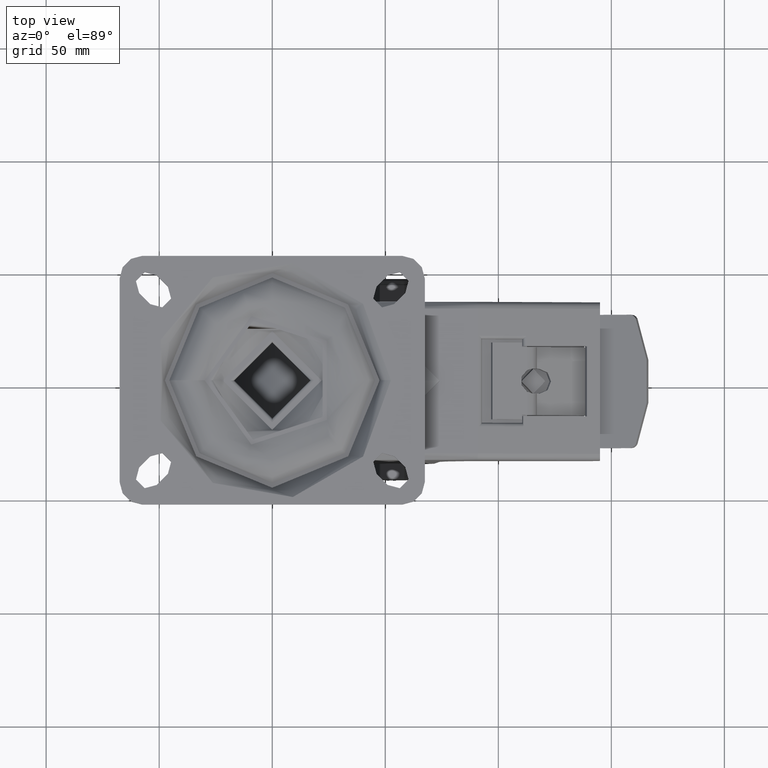
[diagram: clean part render]
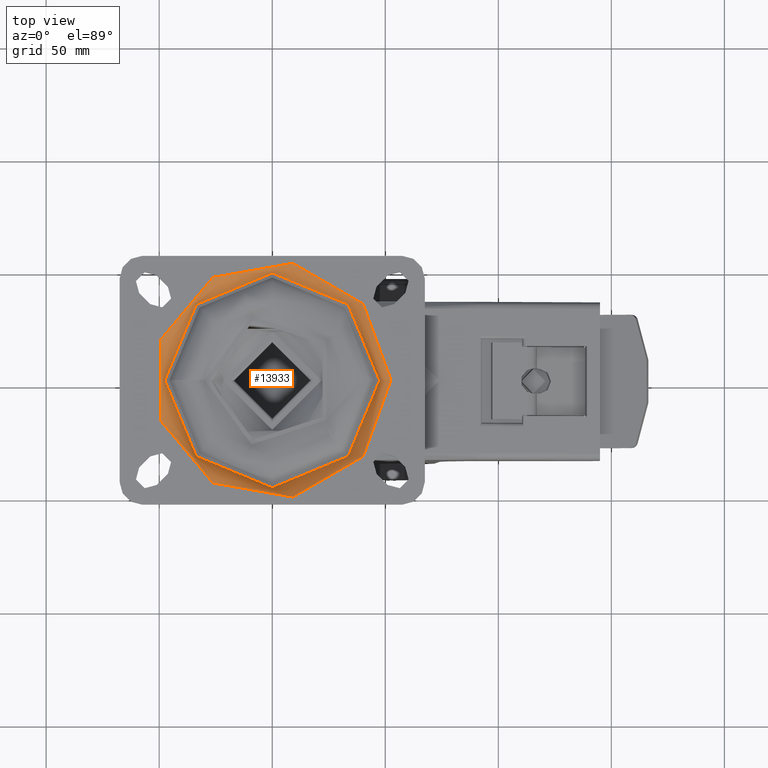
[diagram: same view with one face highlighted and labeled with its STEP entity id]
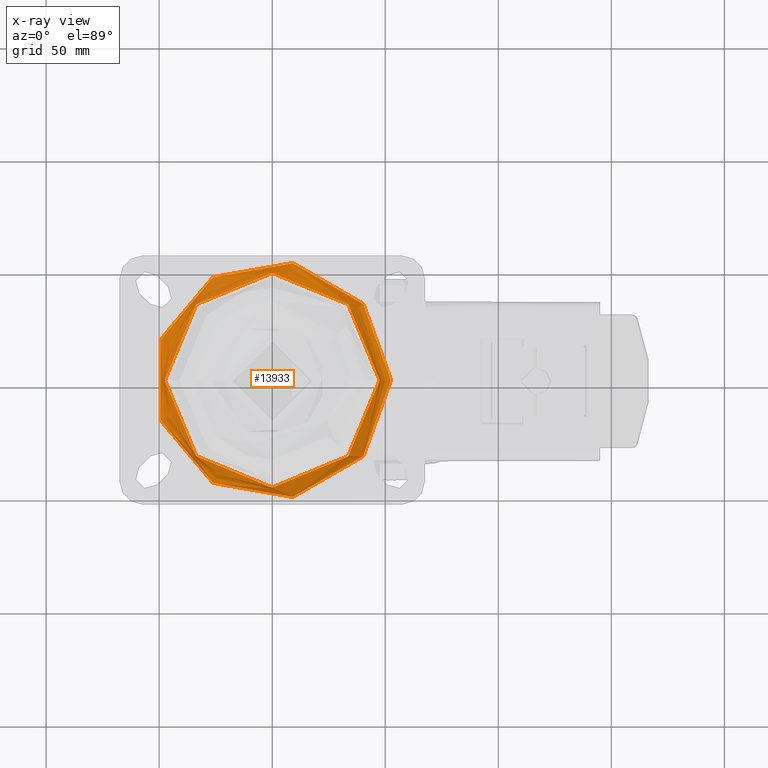
[diagram: x-ray of the same camera — body ghosted, the highlighted face saturated]
A machine part, top view. The second image highlights one B-rep face of the part: STEP entity #13933.
The next image is the same camera in x-ray: the body ghosted, the highlighted face saturated — about 0% of this face is hidden behind the body in this view.
In plain terms, the highlighted toroidal blend (fillet) surface has major radius 52.4937 mm and minor (blend) radius 5 mm.
Its self-contained STEP definition (entity closure, byte-faithful):
#1790=TOROIDAL_SURFACE('',#15117,52.4937460888595,5.);
#1882=FACE_OUTER_BOUND('',#2768,.T.);
#2768=EDGE_LOOP('',(#9560,#9561,#9562,#9563));
#5255=CIRCLE('',#15118,47.5);
#5256=CIRCLE('',#15119,5.);
#5257=CIRCLE('',#15120,52.4937460888595);
#6116=VERTEX_POINT('',#21008);
#6117=VERTEX_POINT('',#21010);
#7455=EDGE_CURVE('',#6116,#6116,#5255,.T.);
#7456=EDGE_CURVE('',#6116,#6117,#5256,.T.);
#7457=EDGE_CURVE('',#6117,#6117,#5257,.T.);
#9560=ORIENTED_EDGE('',*,*,#7455,.T.);
#9561=ORIENTED_EDGE('',*,*,#7456,.T.);
#9562=ORIENTED_EDGE('',*,*,#7457,.T.);
#9563=ORIENTED_EDGE('',*,*,#7456,.F.);
#13933=ADVANCED_FACE('',(#1882),#1790,.T.);
#15117=AXIS2_PLACEMENT_3D('',#21007,#16886,#16887);
#15118=AXIS2_PLACEMENT_3D('',#21009,#16888,#16889);
#15119=AXIS2_PLACEMENT_3D('',#21011,#16890,#16891);
#15120=AXIS2_PLACEMENT_3D('',#21012,#16892,#16893);
#16886=DIRECTION('center_axis',(0.,0.,1.));
#16887=DIRECTION('ref_axis',(-1.,-9.91644751508222E-17,0.));
#16888=DIRECTION('center_axis',(0.,0.,-1.));
#16889=DIRECTION('ref_axis',(-1.,0.,0.));
#16890=DIRECTION('center_axis',(-2.21629155065558E-16,1.,0.));
#16891=DIRECTION('ref_axis',(1.,2.21629155065558E-16,0.));
#16892=DIRECTION('center_axis',(0.,0.,1.));
#16893=DIRECTION('ref_axis',(-1.,-9.91644751508222E-17,0.));
#21007=CARTESIAN_POINT('Origin',(0.,0.,-5.));
#21008=CARTESIAN_POINT('',(47.5,1.0527384865614E-14,-4.75));
#21009=CARTESIAN_POINT('Origin',(0.,0.,-4.75));
#21010=CARTESIAN_POINT('',(52.4937460888595,1.16341445918999E-14,0.));
#21011=CARTESIAN_POINT('Origin',(52.4937460888595,1.16341445918998E-14,
-5.));
#21012=CARTESIAN_POINT('Origin',(0.,0.,0.));